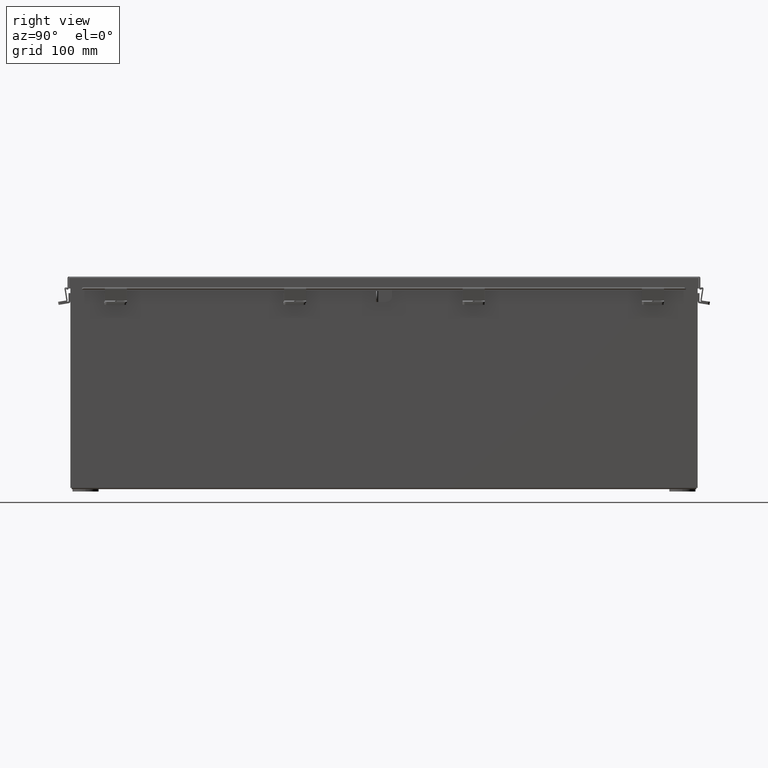
[diagram: clean part render]
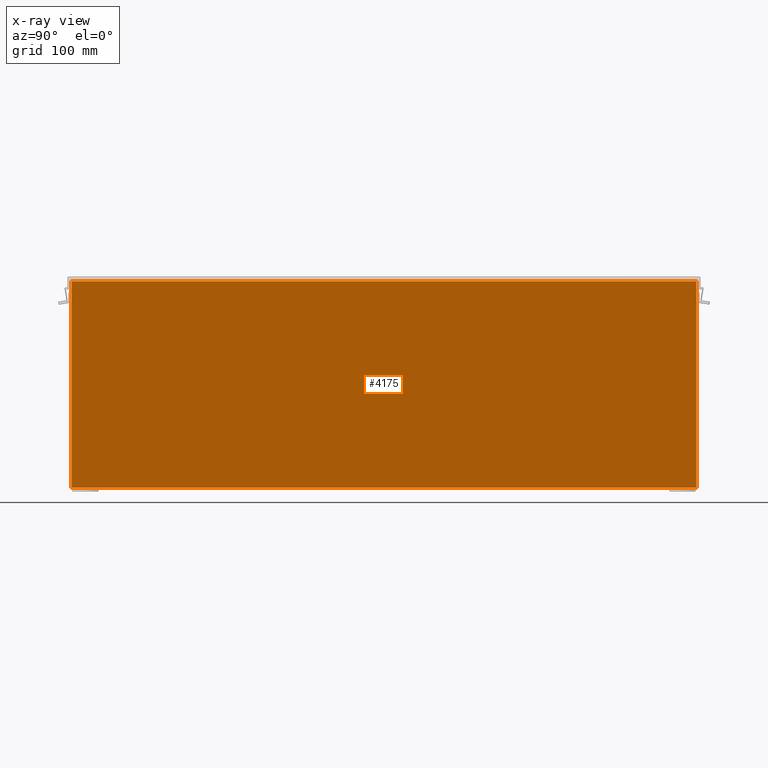
[diagram: x-ray — body ghosted, one internal face saturated and labeled with its STEP entity id]
A machine part, right view, then the same camera in x-ray: the body is ghosted and one INTERNAL B-rep face — a face not visible from any outside direction — is saturated and labeled: STEP entity #4175.
In plain terms, the highlighted planar face has unit normal (-1, 0, 0).
Its self-contained STEP definition (entity closure, byte-faithful):
#551 = EDGE_CURVE ( 'NONE', #28503, #13021, #16930, .T. ) ;
#1751 = LINE ( 'NONE', #20302, #7128 ) ;
#2195 = FACE_OUTER_BOUND ( 'NONE', #23661, .T. ) ;
#3687 = DIRECTION ( 'NONE',  ( -0.0000000000000000000, -1.000000000000000000, -0.0000000000000000000 ) ) ;
#3790 = VECTOR ( 'NONE', #21952, 39.37007874015748100 ) ;
#4084 = DIRECTION ( 'NONE',  ( 0.0000000000000000000, 1.000000000000000000, 0.0000000000000000000 ) ) ;
#4175 = ADVANCED_FACE ( 'NONE', ( #2195 ), #18367, .T. ) ;
#4569 = CARTESIAN_POINT ( 'NONE',  ( 5.925299999999999100, 0.0000000000000000000, -2.102669252623462500E-014 ) ) ;
#4686 = VECTOR ( 'NONE', #3687, 39.37007874015748100 ) ;
#6244 = VERTEX_POINT ( 'NONE', #23611 ) ;
#6874 = DIRECTION ( 'NONE',  ( -1.000000000000000000, 0.0000000000000000000, 3.503965158194251300E-015 ) ) ;
#7128 = VECTOR ( 'NONE', #4084, 39.37007874015748100 ) ;
#7129 = EDGE_CURVE ( 'NONE', #6244, #28503, #9916, .T. ) ;
#9510 = ORIENTED_EDGE ( 'NONE', *, *, #15618, .F. ) ;
#9916 = LINE ( 'NONE', #19641, #3790 ) ;
#10479 = LINE ( 'NONE', #25315, #15860 ) ;
#10801 = AXIS2_PLACEMENT_3D ( 'NONE', #4569, #6874, #23007 ) ;
#11001 = CARTESIAN_POINT ( 'NONE',  ( 5.925300000000040900, -17.92530000000000000, 11.83759999999999800 ) ) ;
#13021 = VERTEX_POINT ( 'NONE', #11001 ) ;
#13829 = DIRECTION ( 'NONE',  ( -3.503965158194252100E-015, -0.0000000000000000000, -1.000000000000000000 ) ) ;
#15618 = EDGE_CURVE ( 'NONE', #22576, #6244, #1751, .T. ) ;
#15860 = VECTOR ( 'NONE', #13829, 39.37007874015748100 ) ;
#16930 = LINE ( 'NONE', #19822, #4686 ) ;
#17537 = CARTESIAN_POINT ( 'NONE',  ( 5.925299999999999100, -17.92530000000000000, 0.01300000000000011600 ) ) ;
#18367 = PLANE ( 'NONE',  #10801 ) ;
#19641 = CARTESIAN_POINT ( 'NONE',  ( 5.925300000000040900, 17.92530000000000000, 11.85060000000000000 ) ) ;
#19822 = CARTESIAN_POINT ( 'NONE',  ( 5.925300000000040900, 17.92530000000000000, 11.83759999999999800 ) ) ;
#20302 = CARTESIAN_POINT ( 'NONE',  ( 5.925299999999999100, -17.92530000000000000, 0.01300000000000011600 ) ) ;
#21952 = DIRECTION ( 'NONE',  ( 3.503965158194252100E-015, -0.0000000000000000000, 1.000000000000000000 ) ) ;
#22576 = VERTEX_POINT ( 'NONE', #17537 ) ;
#22810 = EDGE_CURVE ( 'NONE', #13021, #22576, #10479, .T. ) ;
#22832 = ORIENTED_EDGE ( 'NONE', *, *, #7129, .F. ) ;
#23007 = DIRECTION ( 'NONE',  ( 3.503965158194251300E-015, 0.0000000000000000000, 1.000000000000000000 ) ) ;
#23585 = ORIENTED_EDGE ( 'NONE', *, *, #551, .F. ) ;
#23611 = CARTESIAN_POINT ( 'NONE',  ( 5.925299999999999100, 17.92530000000000000, 0.01300000000000011600 ) ) ;
#23661 = EDGE_LOOP ( 'NONE', ( #26318, #23585, #22832, #9510 ) ) ;
#24017 = CARTESIAN_POINT ( 'NONE',  ( 5.925300000000040900, 17.92530000000000000, 11.83759999999999800 ) ) ;
#25315 = CARTESIAN_POINT ( 'NONE',  ( 5.925299999999999100, -17.92530000000000000, 0.0000000000000000000 ) ) ;
#26318 = ORIENTED_EDGE ( 'NONE', *, *, #22810, .F. ) ;
#28503 = VERTEX_POINT ( 'NONE', #24017 ) ;